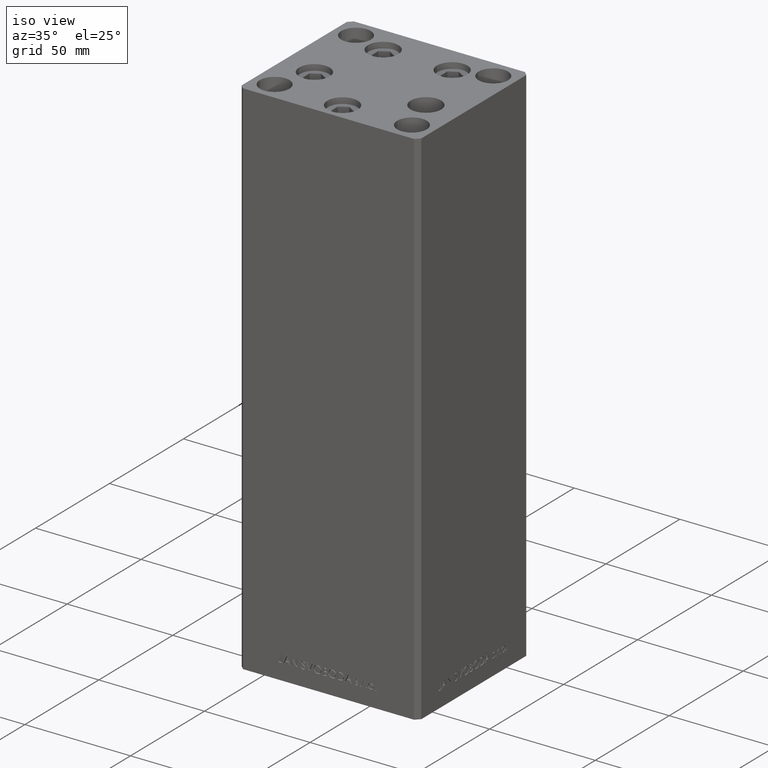
[diagram: clean part render]
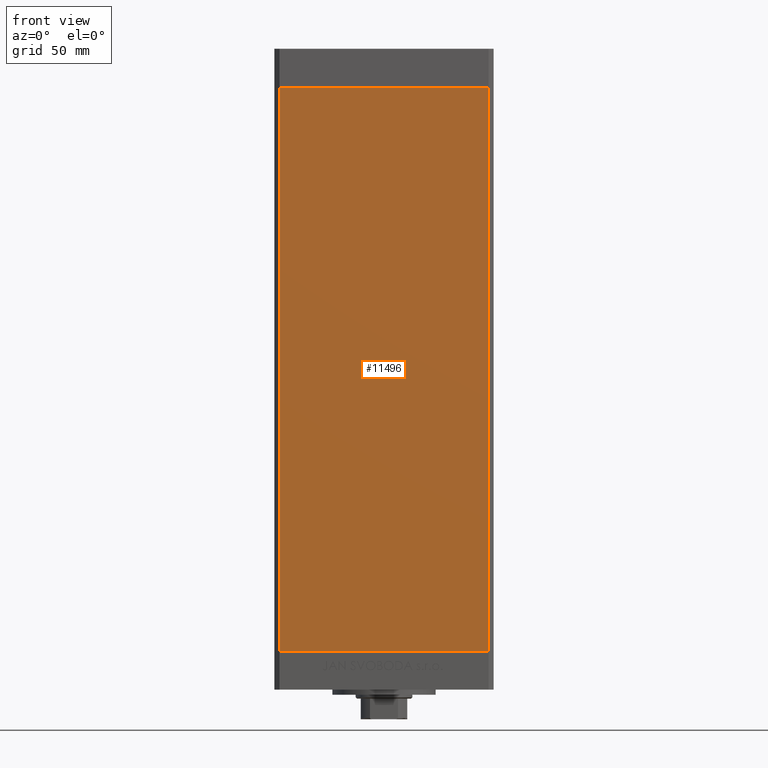
[diagram: tour spotlight — one face highlighted and labeled with its STEP entity id]
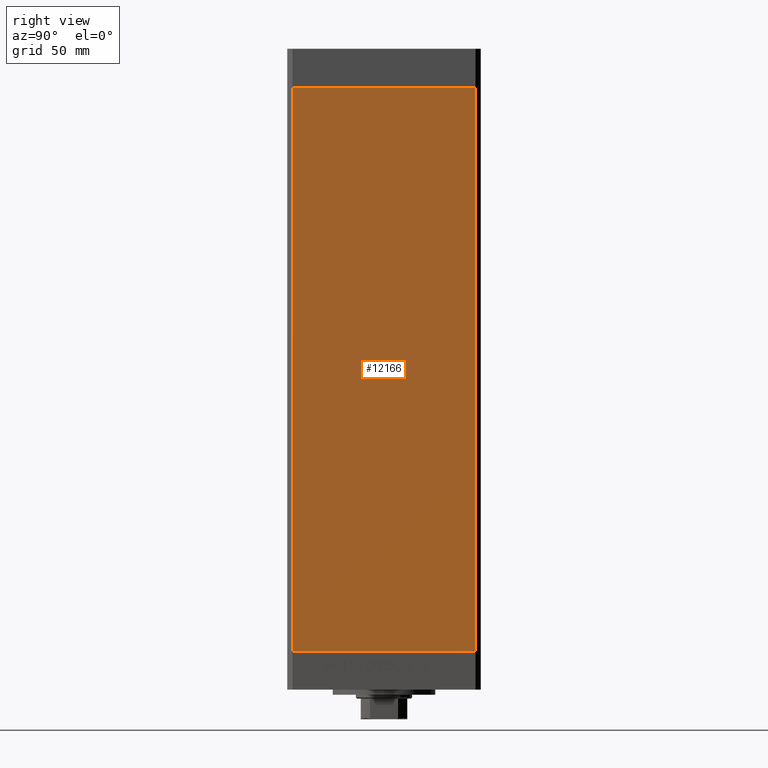
[diagram: tour spotlight — one face highlighted and labeled with its STEP entity id]
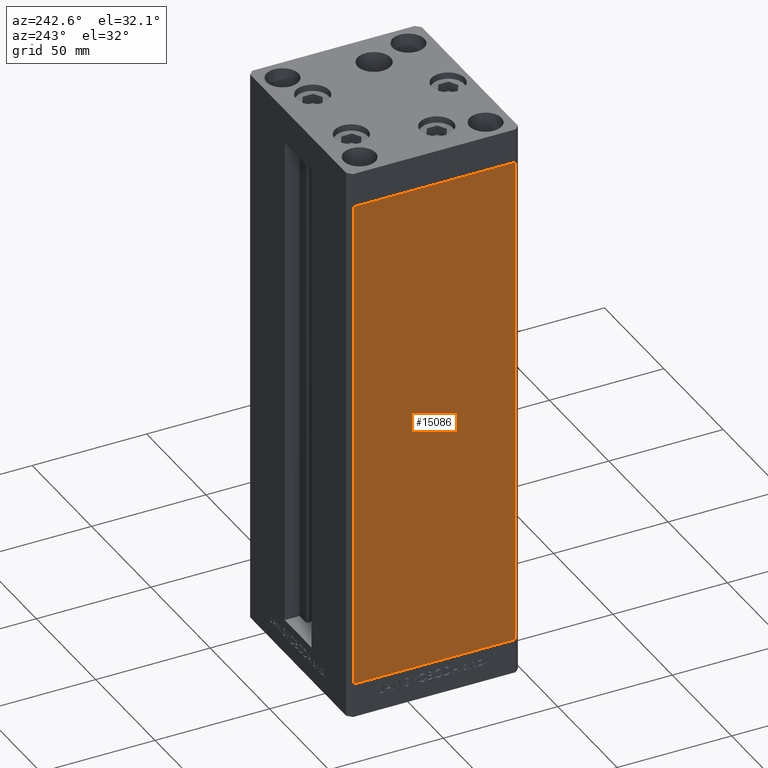
[diagram: tour spotlight — one face highlighted and labeled with its STEP entity id]
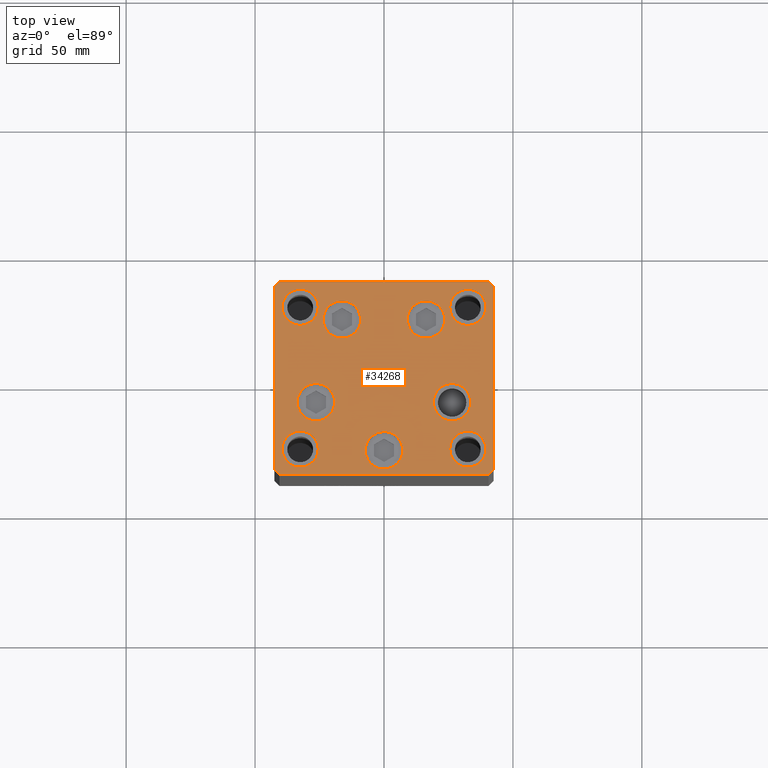
[diagram: tour spotlight — one face highlighted and labeled with its STEP entity id]
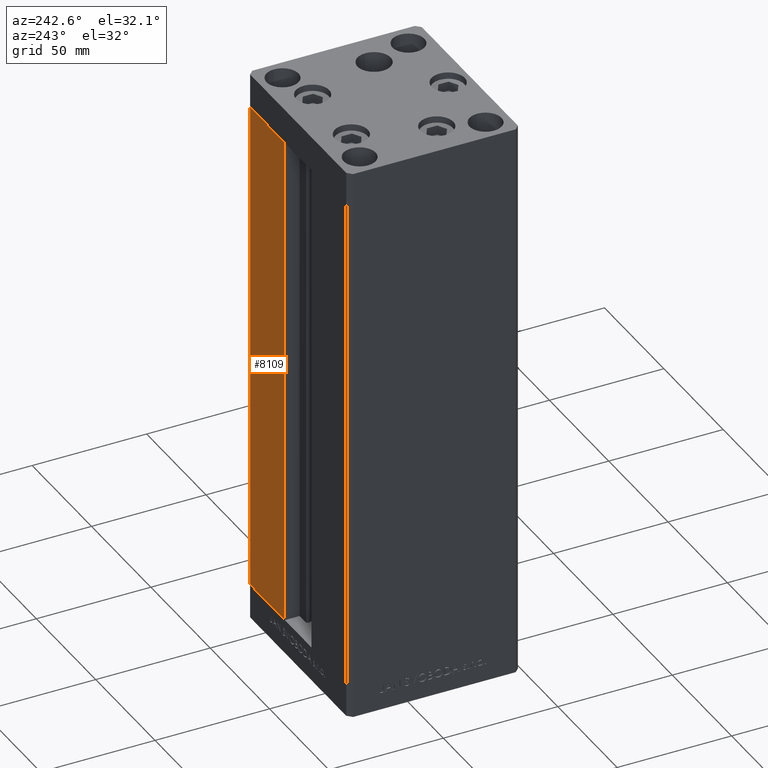
[diagram: tour spotlight — one face highlighted and labeled with its STEP entity id]
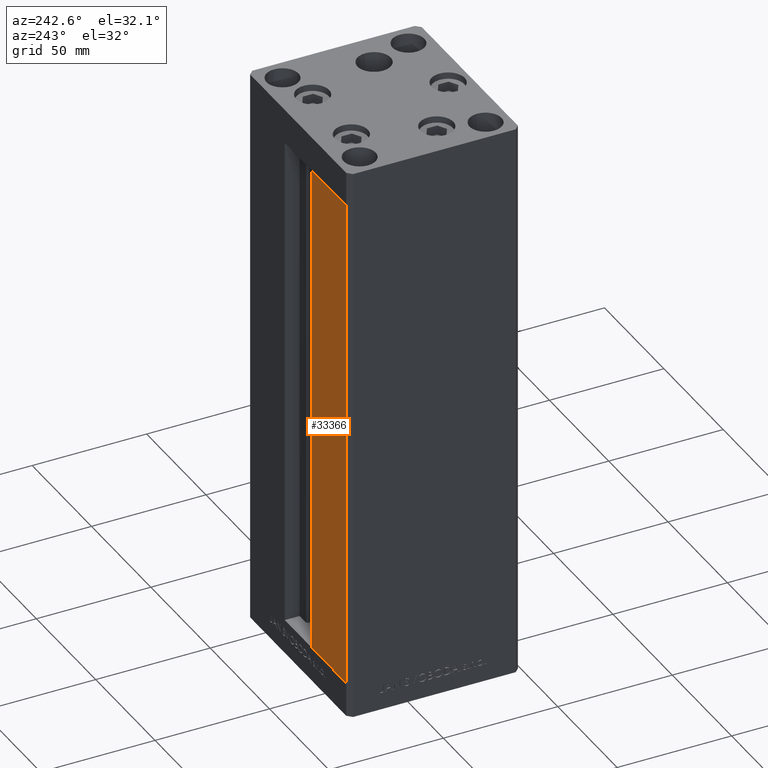
[diagram: tour spotlight — one face highlighted and labeled with its STEP entity id]
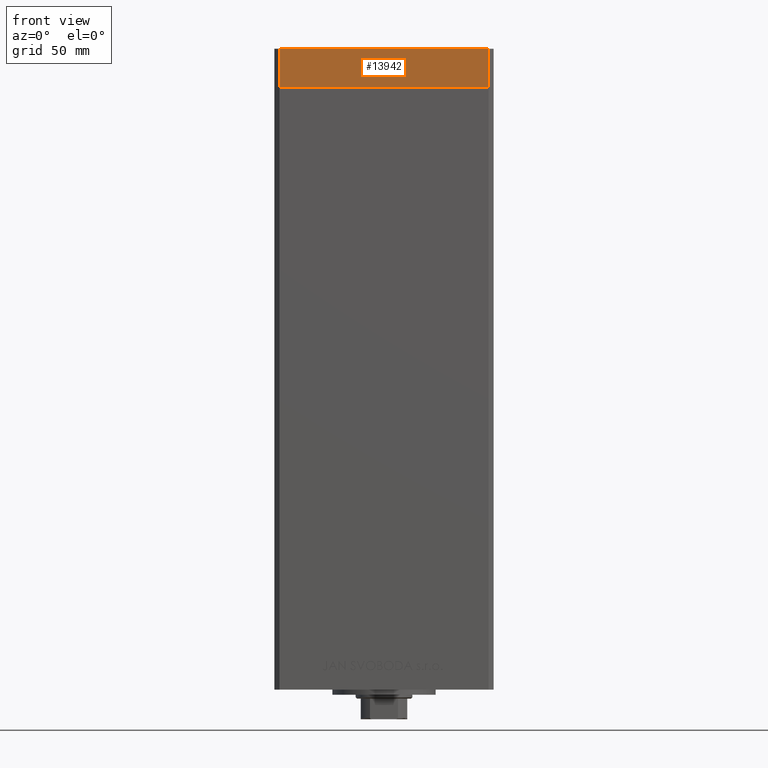
[diagram: tour spotlight — one face highlighted and labeled with its STEP entity id]
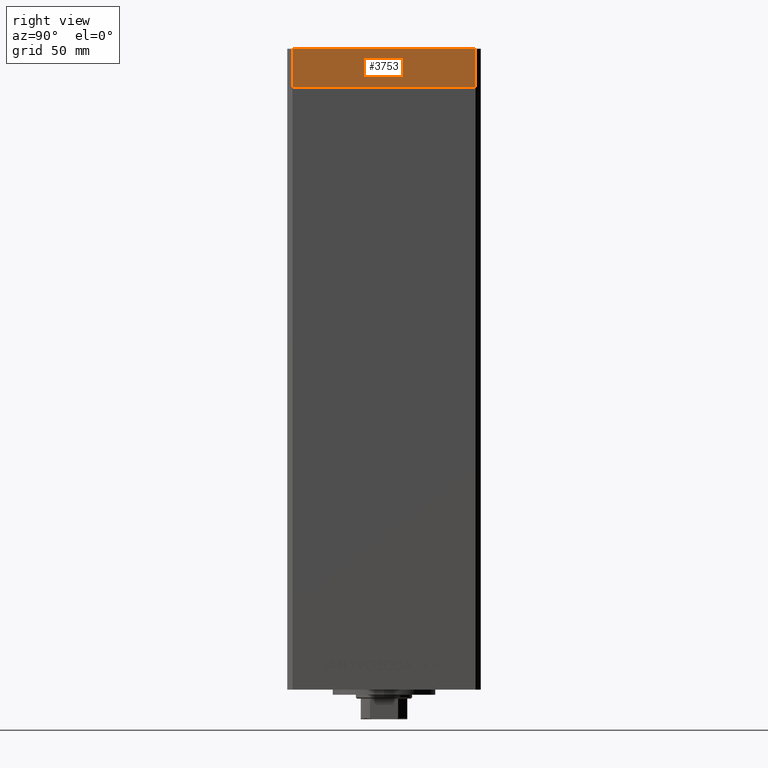
[diagram: tour spotlight — one face highlighted and labeled with its STEP entity id]
A machine part: a face-by-face anatomy tour. The part has 1163 B-rep faces; the first image is the clean iso view, then the 8 largest visible faces are spotlighted one at a time (largest first), each with its STEP entity span.

Face 1 — front view, entity #11496. In plain terms, the highlighted planar face has unit normal (0, 1, 0).
Definition (entity closure, byte-faithful):
#160 = ORIENTED_EDGE ( 'NONE', *, *, #41957, .T. ) ;
#2158 = CARTESIAN_POINT ( 'NONE',  ( -40.49999999999998579, -37.50000000000000711, 0.000000000000000000 ) ) ;
#2602 = VERTEX_POINT ( 'NONE', #17815 ) ;
#3008 = EDGE_CURVE ( 'NONE', #47636, #32334, #26289, .T. ) ;
#3666 = DIRECTION ( 'NONE',  ( 0.000000000000000000, -0.000000000000000000, 1.000000000000000000 ) ) ;
#8090 = LINE ( 'NONE', #42748, #14279 ) ;
#10599 = CARTESIAN_POINT ( 'NONE',  ( -40.49999999999998579, -37.50000000000000711, 218.5000000000000000 ) ) ;
#11496 = ADVANCED_FACE ( 'NONE', ( #33854 ), #48971, .F. ) ;
#11807 = DIRECTION ( 'NONE',  ( -0.000000000000000000, -0.000000000000000000, -1.000000000000000000 ) ) ;
#11818 = DIRECTION ( 'NONE',  ( 0.000000000000000000, 1.000000000000000000, 0.000000000000000000 ) ) ;
#12721 = ORIENTED_EDGE ( 'NONE', *, *, #22586, .F. ) ;
#14240 = CARTESIAN_POINT ( 'NONE',  ( 40.49999999999998579, -37.50000000000000711, 0.000000000000000000 ) ) ;
#14279 = VECTOR ( 'NONE', #11807, 1000.000000000000000 ) ;
#17237 = DIRECTION ( 'NONE',  ( 1.000000000000000000, 0.000000000000000000, 0.000000000000000000 ) ) ;
#17802 = VECTOR ( 'NONE', #17237, 1000.000000000000000 ) ;
#17815 = CARTESIAN_POINT ( 'NONE',  ( 40.49999999999998579, -37.50000000000000711, 218.5000000000000000 ) ) ;
#19824 = EDGE_CURVE ( 'NONE', #2602, #40639, #8090, .T. ) ;
#21378 = ORIENTED_EDGE ( 'NONE', *, *, #3008, .T. ) ;
#22586 = EDGE_CURVE ( 'NONE', #47636, #2602, #30577, .T. ) ;
#24837 = VECTOR ( 'NONE', #37952, 1000.000000000000000 ) ;
#26289 = LINE ( 'NONE', #34463, #24837 ) ;
#27461 = AXIS2_PLACEMENT_3D ( 'NONE', #37585, #11818, #3666 ) ;
#28393 = VECTOR ( 'NONE', #42470, 1000.000000000000000 ) ;
#29006 = EDGE_LOOP ( 'NONE', ( #160, #43739, #12721, #21378 ) ) ;
#30577 = LINE ( 'NONE', #31053, #28393 ) ;
#31053 = CARTESIAN_POINT ( 'NONE',  ( -40.49999999999998579, -37.50000000000000711, 218.5000000000000000 ) ) ;
#32334 = VERTEX_POINT ( 'NONE', #35916 ) ;
#33854 = FACE_OUTER_BOUND ( 'NONE', #29006, .T. ) ;
#34463 = CARTESIAN_POINT ( 'NONE',  ( -40.49999999999998579, -37.50000000000000711, 218.5000000000000000 ) ) ;
#35916 = CARTESIAN_POINT ( 'NONE',  ( -40.49999999999998579, -37.50000000000000711, 0.000000000000000000 ) ) ;
#37585 = CARTESIAN_POINT ( 'NONE',  ( -40.49999999999998579, -37.50000000000000711, 218.5000000000000000 ) ) ;
#37952 = DIRECTION ( 'NONE',  ( -0.000000000000000000, -0.000000000000000000, -1.000000000000000000 ) ) ;
#39779 = LINE ( 'NONE', #2158, #17802 ) ;
#40639 = VERTEX_POINT ( 'NONE', #14240 ) ;
#41957 = EDGE_CURVE ( 'NONE', #32334, #40639, #39779, .T. ) ;
#42470 = DIRECTION ( 'NONE',  ( 1.000000000000000000, 0.000000000000000000, 0.000000000000000000 ) ) ;
#42748 = CARTESIAN_POINT ( 'NONE',  ( 40.49999999999998579, -37.50000000000000711, 218.5000000000000000 ) ) ;
#43739 = ORIENTED_EDGE ( 'NONE', *, *, #19824, .F. ) ;
#47636 = VERTEX_POINT ( 'NONE', #10599 ) ;
#48971 = PLANE ( 'NONE',  #27461 ) ;

Face 2 — right view, entity #12166. In plain terms, the highlighted planar face has unit normal (1, -0, 0).
Definition (entity closure, byte-faithful):
#141 = CARTESIAN_POINT ( 'NONE',  ( 42.50000000000000711, 35.50000000000001421, 0.000000000000000000 ) ) ;
#298 = EDGE_CURVE ( 'NONE', #39199, #4986, #6304, .T. ) ;
#725 = VERTEX_POINT ( 'NONE', #33216 ) ;
#961 = ORIENTED_EDGE ( 'NONE', *, *, #30749, .T. ) ;
#2118 = CARTESIAN_POINT ( 'NONE',  ( 42.49999999999998579, -35.50000000000000711, 0.000000000000000000 ) ) ;
#3964 = CARTESIAN_POINT ( 'NONE',  ( 42.50000000000000711, 35.50000000000001421, 218.5000000000000000 ) ) ;
#4986 = VERTEX_POINT ( 'NONE', #15973 ) ;
#6304 = LINE ( 'NONE', #47415, #42966 ) ;
#9586 = EDGE_LOOP ( 'NONE', ( #12738, #21701, #961, #47147 ) ) ;
#12120 = PLANE ( 'NONE',  #17910 ) ;
#12166 = ADVANCED_FACE ( 'NONE', ( #27219 ), #12120, .T. ) ;
#12406 = CARTESIAN_POINT ( 'NONE',  ( 42.50000000000000711, 35.50000000000001421, 218.5000000000000000 ) ) ;
#12738 = ORIENTED_EDGE ( 'NONE', *, *, #18702, .F. ) ;
#14339 = CARTESIAN_POINT ( 'NONE',  ( 42.49999999999998579, -35.50000000000000711, 218.5000000000000000 ) ) ;
#15973 = CARTESIAN_POINT ( 'NONE',  ( 42.50000000000000711, 35.50000000000001421, 0.000000000000000000 ) ) ;
#17910 = AXIS2_PLACEMENT_3D ( 'NONE', #30699, #19064, #34899 ) ;
#18702 = EDGE_CURVE ( 'NONE', #4986, #38577, #34029, .T. ) ;
#19029 = VECTOR ( 'NONE', #19049, 1000.000000000000000 ) ;
#19049 = DIRECTION ( 'NONE',  ( -2.931927001650941360E-16, -1.000000000000000000, 0.000000000000000000 ) ) ;
#19064 = DIRECTION ( 'NONE',  ( 1.000000000000000000, -2.931927001650941360E-16, 0.000000000000000000 ) ) ;
#19287 = LINE ( 'NONE', #3964, #19029 ) ;
#21265 = VECTOR ( 'NONE', #30316, 1000.000000000000000 ) ;
#21701 = ORIENTED_EDGE ( 'NONE', *, *, #298, .F. ) ;
#27219 = FACE_OUTER_BOUND ( 'NONE', #9586, .T. ) ;
#30316 = DIRECTION ( 'NONE',  ( -2.931927001650941360E-16, -1.000000000000000000, 0.000000000000000000 ) ) ;
#30699 = CARTESIAN_POINT ( 'NONE',  ( 42.50000000000000711, 35.50000000000001421, 218.5000000000000000 ) ) ;
#30749 = EDGE_CURVE ( 'NONE', #39199, #725, #19287, .T. ) ;
#33216 = CARTESIAN_POINT ( 'NONE',  ( 42.49999999999998579, -35.50000000000000711, 218.5000000000000000 ) ) ;
#34029 = LINE ( 'NONE', #141, #21265 ) ;
#34899 = DIRECTION ( 'NONE',  ( 2.931927001650941360E-16, 1.000000000000000000, 0.000000000000000000 ) ) ;
#37141 = LINE ( 'NONE', #14339, #48504 ) ;
#37203 = EDGE_CURVE ( 'NONE', #725, #38577, #37141, .T. ) ;
#37383 = DIRECTION ( 'NONE',  ( -0.000000000000000000, -0.000000000000000000, -1.000000000000000000 ) ) ;
#38577 = VERTEX_POINT ( 'NONE', #2118 ) ;
#39199 = VERTEX_POINT ( 'NONE', #12406 ) ;
#42966 = VECTOR ( 'NONE', #47657, 1000.000000000000000 ) ;
#47147 = ORIENTED_EDGE ( 'NONE', *, *, #37203, .T. ) ;
#47415 = CARTESIAN_POINT ( 'NONE',  ( 42.50000000000000711, 35.50000000000001421, 218.5000000000000000 ) ) ;
#47657 = DIRECTION ( 'NONE',  ( -0.000000000000000000, -0.000000000000000000, -1.000000000000000000 ) ) ;
#48504 = VECTOR ( 'NONE', #37383, 1000.000000000000000 ) ;

Face 3 — auxiliary view, entity #15086. In plain terms, the highlighted planar face has unit normal (1, 0, 0).
Definition (entity closure, byte-faithful):
#1800 = VERTEX_POINT ( 'NONE', #24994 ) ;
#4242 = CARTESIAN_POINT ( 'NONE',  ( -42.50000000000000711, 35.50000000000001421, 218.5000000000000000 ) ) ;
#4543 = AXIS2_PLACEMENT_3D ( 'NONE', #36073, #35824, #44012 ) ;
#5864 = DIRECTION ( 'NONE',  ( 2.931927001650941360E-16, -1.000000000000000000, 0.000000000000000000 ) ) ;
#6888 = CARTESIAN_POINT ( 'NONE',  ( -42.49999999999998579, -35.50000000000000711, 218.5000000000000000 ) ) ;
#6902 = ORIENTED_EDGE ( 'NONE', *, *, #48672, .F. ) ;
#7399 = ORIENTED_EDGE ( 'NONE', *, *, #41333, .T. ) ;
#10094 = EDGE_CURVE ( 'NONE', #1800, #28077, #26434, .T. ) ;
#11834 = DIRECTION ( 'NONE',  ( -0.000000000000000000, -0.000000000000000000, -1.000000000000000000 ) ) ;
#12417 = LINE ( 'NONE', #28492, #39693 ) ;
#12562 = LINE ( 'NONE', #4242, #21034 ) ;
#13388 = LINE ( 'NONE', #43623, #25679 ) ;
#15086 = ADVANCED_FACE ( 'NONE', ( #40040 ), #24194, .F. ) ;
#17970 = ORIENTED_EDGE ( 'NONE', *, *, #10094, .F. ) ;
#20080 = DIRECTION ( 'NONE',  ( -0.000000000000000000, -0.000000000000000000, -1.000000000000000000 ) ) ;
#21034 = VECTOR ( 'NONE', #5864, 1000.000000000000000 ) ;
#24194 = PLANE ( 'NONE',  #4543 ) ;
#24994 = CARTESIAN_POINT ( 'NONE',  ( -42.49999999999998579, -35.50000000000000711, 218.5000000000000000 ) ) ;
#25265 = DIRECTION ( 'NONE',  ( 2.931927001650941360E-16, -1.000000000000000000, 0.000000000000000000 ) ) ;
#25679 = VECTOR ( 'NONE', #25265, 1000.000000000000000 ) ;
#26434 = LINE ( 'NONE', #6888, #33762 ) ;
#28077 = VERTEX_POINT ( 'NONE', #36954 ) ;
#28492 = CARTESIAN_POINT ( 'NONE',  ( -42.50000000000000711, 35.50000000000001421, 218.5000000000000000 ) ) ;
#31352 = CARTESIAN_POINT ( 'NONE',  ( -42.50000000000000711, 35.50000000000001421, 0.000000000000000000 ) ) ;
#33387 = VERTEX_POINT ( 'NONE', #31352 ) ;
#33630 = EDGE_CURVE ( 'NONE', #39085, #33387, #12417, .T. ) ;
#33762 = VECTOR ( 'NONE', #11834, 1000.000000000000000 ) ;
#35523 = ORIENTED_EDGE ( 'NONE', *, *, #33630, .T. ) ;
#35824 = DIRECTION ( 'NONE',  ( 1.000000000000000000, 2.931927001650941360E-16, -0.000000000000000000 ) ) ;
#36073 = CARTESIAN_POINT ( 'NONE',  ( -42.50000000000000711, 35.50000000000001421, 218.5000000000000000 ) ) ;
#36522 = CARTESIAN_POINT ( 'NONE',  ( -42.50000000000000711, 35.50000000000001421, 218.5000000000000000 ) ) ;
#36954 = CARTESIAN_POINT ( 'NONE',  ( -42.49999999999998579, -35.50000000000000711, 0.000000000000000000 ) ) ;
#39085 = VERTEX_POINT ( 'NONE', #36522 ) ;
#39693 = VECTOR ( 'NONE', #20080, 1000.000000000000000 ) ;
#40040 = FACE_OUTER_BOUND ( 'NONE', #41187, .T. ) ;
#41187 = EDGE_LOOP ( 'NONE', ( #7399, #17970, #6902, #35523 ) ) ;
#41333 = EDGE_CURVE ( 'NONE', #33387, #28077, #13388, .T. ) ;
#43623 = CARTESIAN_POINT ( 'NONE',  ( -42.50000000000000711, 35.50000000000001421, 0.000000000000000000 ) ) ;
#44012 = DIRECTION ( 'NONE',  ( -2.931927001650941360E-16, 1.000000000000000000, 0.000000000000000000 ) ) ;
#48672 = EDGE_CURVE ( 'NONE', #39085, #1800, #12562, .T. ) ;

Face 4 — top view, entity #34268. In plain terms, the highlighted planar face has unit normal (0, 0, 1).
Definition (entity closure, byte-faithful):
#205 = CARTESIAN_POINT ( 'NONE',  ( 32.50000000000000000, 27.49999999999999645, 0.000000000000000000 ) ) ;
#416 = EDGE_CURVE ( 'NONE', #34835, #42306, #44512, .T. ) ;
#457 = CARTESIAN_POINT ( 'NONE',  ( -32.50000000000000000, -27.49999999999999645, 0.000000000000000000 ) ) ;
#562 = AXIS2_PLACEMENT_3D ( 'NONE', #13264, #28384, #12790 ) ;
#807 = DIRECTION ( 'NONE',  ( 0.000000000000000000, -0.000000000000000000, -1.000000000000000000 ) ) ;
#1048 = CARTESIAN_POINT ( 'NONE',  ( -42.50000000000000000, -35.50000000000000711, 0.000000000000000000 ) ) ;
#1182 = AXIS2_PLACEMENT_3D ( 'NONE', #44288, #10111, #40331 ) ;
#1770 = CARTESIAN_POINT ( 'NONE',  ( 42.50000000000000711, -35.50000000000000000, 0.000000000000000000 ) ) ;
#1889 = DIRECTION ( 'NONE',  ( 0.000000000000000000, 0.000000000000000000, 1.000000000000000000 ) ) ;
#1973 = EDGE_CURVE ( 'NONE', #13933, #17259, #10565, .T. ) ;
#2150 = FACE_BOUND ( 'NONE', #12553, .T. ) ;
#2233 = VERTEX_POINT ( 'NONE', #17748 ) ;
#2363 = CARTESIAN_POINT ( 'NONE',  ( -42.50000000000000000, -35.50000000000000711, 0.000000000000000000 ) ) ;
#2371 = CARTESIAN_POINT ( 'NONE',  ( -40.49999999999999289, -37.50000000000002132, 0.000000000000000000 ) ) ;
#2797 = AXIS2_PLACEMENT_3D ( 'NONE', #36557, #3381, #18460 ) ;
#2874 = CARTESIAN_POINT ( 'NONE',  ( -42.50000000000000711, 35.49999999999997158, 0.000000000000000000 ) ) ;
#3130 = CARTESIAN_POINT ( 'NONE',  ( 0.000000000000000000, 0.000000000000000000, 0.000000000000000000 ) ) ;
#3145 = AXIS2_PLACEMENT_3D ( 'NONE', #40583, #25954, #14319 ) ;
#3381 = DIRECTION ( 'NONE',  ( 0.000000000000000000, 0.000000000000000000, 1.000000000000000000 ) ) ;
#3501 = CARTESIAN_POINT ( 'NONE',  ( 25.50000000000000355, 27.49999999999999645, 0.000000000000000000 ) ) ;
#3640 = DIRECTION ( 'NONE',  ( 0.000000000000000000, -0.000000000000000000, -1.000000000000000000 ) ) ;
#3850 = EDGE_CURVE ( 'NONE', #28879, #9947, #10609, .T. ) ;
#4124 = DIRECTION ( 'NONE',  ( 0.000000000000000000, 0.000000000000000000, 1.000000000000000000 ) ) ;
#4425 = CARTESIAN_POINT ( 'NONE',  ( 9.072913342905424727, 22.75000000000000000, 0.000000000000000000 ) ) ;
#4519 = CARTESIAN_POINT ( 'NONE',  ( -39.50000000000000000, -27.49999999999999645, 0.000000000000000000 ) ) ;
#4730 = VERTEX_POINT ( 'NONE', #25937 ) ;
#5124 = CIRCLE ( 'NONE', #1182, 7.250000000000000000 ) ;
#5449 = VERTEX_POINT ( 'NONE', #28997 ) ;
#5581 = CARTESIAN_POINT ( 'NONE',  ( 42.49999999999992895, 35.50000000000000000, 0.000000000000000000 ) ) ;
#5610 = FACE_BOUND ( 'NONE', #26766, .T. ) ;
#5719 = LINE ( 'NONE', #17588, #23847 ) ;
#6264 = AXIS2_PLACEMENT_3D ( 'NONE', #18811, #30201, #26977 ) ;
#6592 = LINE ( 'NONE', #15740, #28268 ) ;
#7612 = VECTOR ( 'NONE', #44119, 1000.000000000000114 ) ;
#7839 = EDGE_CURVE ( 'NONE', #17772, #30258, #28261, .T. ) ;
#8146 = AXIS2_PLACEMENT_3D ( 'NONE', #34262, #8741, #34750 ) ;
#8248 = VERTEX_POINT ( 'NONE', #4425 ) ;
#8675 = ORIENTED_EDGE ( 'NONE', *, *, #16298, .T. ) ;
#8676 = VERTEX_POINT ( 'NONE', #1048 ) ;
#8714 = EDGE_CURVE ( 'NONE', #2233, #17772, #35669, .T. ) ;
#8741 = DIRECTION ( 'NONE',  ( 0.000000000000000000, 0.000000000000000000, 1.000000000000000000 ) ) ;
#8814 = DIRECTION ( 'NONE',  ( 1.000000000000000000, 1.713307136767217096E-16, 0.000000000000000000 ) ) ;
#9175 = DIRECTION ( 'NONE',  ( 0.000000000000000000, -0.000000000000000000, -1.000000000000000000 ) ) ;
#9298 = CARTESIAN_POINT ( 'NONE',  ( -32.50000000000000000, 27.50000000000000355, 0.000000000000000000 ) ) ;
#9374 = CIRCLE ( 'NONE', #6264, 6.999999999999999112 ) ;
#9746 = AXIS2_PLACEMENT_3D ( 'NONE', #205, #11314, #45499 ) ;
#9823 = AXIS2_PLACEMENT_3D ( 'NONE', #46343, #807, #27505 ) ;
#9884 = ORIENTED_EDGE ( 'NONE', *, *, #17871, .T. ) ;
#9897 = CARTESIAN_POINT ( 'NONE',  ( -40.50000000000000711, 37.49999999999997868, 0.000000000000000000 ) ) ;
#9947 = VERTEX_POINT ( 'NONE', #14055 ) ;
#10054 = FACE_BOUND ( 'NONE', #29901, .T. ) ;
#10074 = DIRECTION ( 'NONE',  ( 1.000000000000000000, 0.000000000000000000, 0.000000000000000000 ) ) ;
#10111 = DIRECTION ( 'NONE',  ( 0.000000000000000000, -0.000000000000000000, -1.000000000000000000 ) ) ;
#10245 = VERTEX_POINT ( 'NONE', #47945 ) ;
#10307 = ORIENTED_EDGE ( 'NONE', *, *, #37688, .T. ) ;
#10387 = CARTESIAN_POINT ( 'NONE',  ( -16.32291334290543006, 22.74999999999999645, 0.000000000000000000 ) ) ;
#10565 = CIRCLE ( 'NONE', #33509, 7.249999999999999112 ) ;
#10609 = CIRCLE ( 'NONE', #15388, 7.249999999999999112 ) ;
#10776 = ORIENTED_EDGE ( 'NONE', *, *, #30636, .F. ) ;
#10977 = ORIENTED_EDGE ( 'NONE', *, *, #3850, .T. ) ;
#11245 = AXIS2_PLACEMENT_3D ( 'NONE', #3130, #17228, #28867 ) ;
#11314 = DIRECTION ( 'NONE',  ( 0.000000000000000000, 0.000000000000000000, 1.000000000000000000 ) ) ;
#11797 = CIRCLE ( 'NONE', #36316, 7.249999999999999112 ) ;
#12024 = DIRECTION ( 'NONE',  ( 1.000000000000000000, 0.000000000000000000, 0.000000000000000000 ) ) ;
#12553 = EDGE_LOOP ( 'NONE', ( #46572, #30174 ) ) ;
#12790 = DIRECTION ( 'NONE',  ( 1.000000000000000000, 0.000000000000000000, 0.000000000000000000 ) ) ;
#12887 = EDGE_CURVE ( 'NONE', #5449, #23276, #43232, .T. ) ;
#12893 = DIRECTION ( 'NONE',  ( 0.7071067811865474617, 0.7071067811865474617, 0.000000000000000000 ) ) ;
#13246 = DIRECTION ( 'NONE',  ( 1.000000000000000000, 0.000000000000000000, 0.000000000000000000 ) ) ;
#13264 = CARTESIAN_POINT ( 'NONE',  ( -26.39865316429776954, -9.333333333333337478, 0.000000000000000000 ) ) ;
#13281 = EDGE_CURVE ( 'NONE', #4730, #48448, #31384, .T. ) ;
#13933 = VERTEX_POINT ( 'NONE', #36371 ) ;
#14055 = CARTESIAN_POINT ( 'NONE',  ( 19.14865316429777309, -9.333333333333330373, 0.000000000000000000 ) ) ;
#14319 = DIRECTION ( 'NONE',  ( 1.000000000000000000, 0.000000000000000000, 0.000000000000000000 ) ) ;
#14335 = EDGE_CURVE ( 'NONE', #25764, #8676, #6592, .T. ) ;
#14960 = CARTESIAN_POINT ( 'NONE',  ( 40.49999999999991473, 37.50000000000000711, 0.000000000000000000 ) ) ;
#15090 = DIRECTION ( 'NONE',  ( 0.000000000000000000, 0.000000000000000000, 1.000000000000000000 ) ) ;
#15249 = EDGE_CURVE ( 'NONE', #8248, #22225, #36147, .T. ) ;
#15279 = ORIENTED_EDGE ( 'NONE', *, *, #45061, .T. ) ;
#15388 = AXIS2_PLACEMENT_3D ( 'NONE', #17220, #36538, #13246 ) ;
#15740 = CARTESIAN_POINT ( 'NONE',  ( -42.50000000000000711, 35.49999999999997158, 0.000000000000000000 ) ) ;
#16298 = EDGE_CURVE ( 'NONE', #30258, #17230, #47447, .T. ) ;
#16359 = CARTESIAN_POINT ( 'NONE',  ( -40.49999999999999289, -37.50000000000002132, 0.000000000000000000 ) ) ;
#16592 = AXIS2_PLACEMENT_3D ( 'NONE', #27627, #32060, #20914 ) ;
#16851 = DIRECTION ( 'NONE',  ( -1.172770800660376741E-15, 1.000000000000000000, 0.000000000000000000 ) ) ;
#17016 = ORIENTED_EDGE ( 'NONE', *, *, #24113, .T. ) ;
#17075 = ORIENTED_EDGE ( 'NONE', *, *, #32409, .T. ) ;
#17078 = CARTESIAN_POINT ( 'NONE',  ( -23.57291334290543006, 22.74999999999999645, 0.000000000000000000 ) ) ;
#17123 = VERTEX_POINT ( 'NONE', #16359 ) ;
#17178 = ORIENTED_EDGE ( 'NONE', *, *, #48875, .F. ) ;
#17220 = CARTESIAN_POINT ( 'NONE',  ( 26.39865316429776954, -9.333333333333330373, 0.000000000000000000 ) ) ;
#17228 = DIRECTION ( 'NONE',  ( -0.000000000000000000, 0.000000000000000000, 1.000000000000000000 ) ) ;
#17230 = VERTEX_POINT ( 'NONE', #9897 ) ;
#17259 = VERTEX_POINT ( 'NONE', #17078 ) ;
#17345 = EDGE_LOOP ( 'NONE', ( #17016, #10977 ) ) ;
#17384 = CIRCLE ( 'NONE', #16592, 7.249999999999999112 ) ;
#17588 = CARTESIAN_POINT ( 'NONE',  ( 40.50000000000000000, -37.50000000000000711, 0.000000000000000000 ) ) ;
#17659 = CIRCLE ( 'NONE', #29506, 6.999999999999999112 ) ;
#17748 = CARTESIAN_POINT ( 'NONE',  ( 42.50000000000000711, -35.50000000000000000, 0.000000000000000000 ) ) ;
#17772 = VERTEX_POINT ( 'NONE', #5581 ) ;
#17871 = EDGE_CURVE ( 'NONE', #8676, #17123, #47912, .T. ) ;
#18460 = DIRECTION ( 'NONE',  ( 1.000000000000000000, 0.000000000000000000, 0.000000000000000000 ) ) ;
#18811 = CARTESIAN_POINT ( 'NONE',  ( -32.50000000000000000, 27.50000000000000355, 0.000000000000000000 ) ) ;
#18874 = CARTESIAN_POINT ( 'NONE',  ( 33.64865316429776954, -9.333333333333328596, 0.000000000000000000 ) ) ;
#19257 = EDGE_LOOP ( 'NONE', ( #25107, #21613 ) ) ;
#19785 = CARTESIAN_POINT ( 'NONE',  ( -26.39865316429776954, -9.333333333333337478, 0.000000000000000000 ) ) ;
#20211 = DIRECTION ( 'NONE',  ( -1.000000000000000000, -3.426614273534436165E-16, 0.000000000000000000 ) ) ;
#20272 = AXIS2_PLACEMENT_3D ( 'NONE', #30108, #4124, #12024 ) ;
#20455 = CARTESIAN_POINT ( 'NONE',  ( 40.49999999999991473, 37.50000000000000711, 0.000000000000000000 ) ) ;
#20695 = VERTEX_POINT ( 'NONE', #31346 ) ;
#20914 = DIRECTION ( 'NONE',  ( 1.000000000000000000, 0.000000000000000000, 0.000000000000000000 ) ) ;
#21054 = VERTEX_POINT ( 'NONE', #26053 ) ;
#21161 = DIRECTION ( 'NONE',  ( 1.000000000000000000, 0.000000000000000000, 0.000000000000000000 ) ) ;
#21342 = DIRECTION ( 'NONE',  ( 1.000000000000000000, 0.000000000000000000, 0.000000000000000000 ) ) ;
#21613 = ORIENTED_EDGE ( 'NONE', *, *, #13281, .T. ) ;
#21676 = FACE_BOUND ( 'NONE', #19257, .T. ) ;
#21863 = CIRCLE ( 'NONE', #20272, 6.999999999999999112 ) ;
#22110 = EDGE_CURVE ( 'NONE', #20695, #10245, #9374, .T. ) ;
#22216 = DIRECTION ( 'NONE',  ( 1.000000000000000000, 0.000000000000000000, 0.000000000000000000 ) ) ;
#22225 = VERTEX_POINT ( 'NONE', #31652 ) ;
#22384 = EDGE_CURVE ( 'NONE', #23276, #5449, #11797, .T. ) ;
#22557 = ORIENTED_EDGE ( 'NONE', *, *, #22110, .F. ) ;
#22607 = CARTESIAN_POINT ( 'NONE',  ( 25.50000000000000355, -27.49999999999999645, 0.000000000000000000 ) ) ;
#22675 = DIRECTION ( 'NONE',  ( 9.773090005503140331E-17, -1.000000000000000000, 0.000000000000000000 ) ) ;
#23145 = VERTEX_POINT ( 'NONE', #37404 ) ;
#23276 = VERTEX_POINT ( 'NONE', #35387 ) ;
#23289 = EDGE_LOOP ( 'NONE', ( #42190, #36989 ) ) ;
#23362 = CIRCLE ( 'NONE', #2797, 6.999999999999999112 ) ;
#23401 = ORIENTED_EDGE ( 'NONE', *, *, #14335, .T. ) ;
#23739 = DIRECTION ( 'NONE',  ( 0.000000000000000000, -0.000000000000000000, -1.000000000000000000 ) ) ;
#23817 = VERTEX_POINT ( 'NONE', #36673 ) ;
#23833 = VERTEX_POINT ( 'NONE', #3501 ) ;
#23847 = VECTOR ( 'NONE', #12893, 1000.000000000000114 ) ;
#24113 = EDGE_CURVE ( 'NONE', #9947, #28879, #24457, .T. ) ;
#24457 = CIRCLE ( 'NONE', #3145, 7.249999999999999112 ) ;
#24657 = FACE_BOUND ( 'NONE', #17345, .T. ) ;
#24739 = EDGE_CURVE ( 'NONE', #17259, #13933, #17384, .T. ) ;
#25107 = ORIENTED_EDGE ( 'NONE', *, *, #44157, .T. ) ;
#25412 = CARTESIAN_POINT ( 'NONE',  ( 16.32291334290542295, 22.75000000000000000, 0.000000000000000000 ) ) ;
#25481 = DIRECTION ( 'NONE',  ( 1.000000000000000000, 0.000000000000000000, 0.000000000000000000 ) ) ;
#25542 = CARTESIAN_POINT ( 'NONE',  ( -32.50000000000000000, -27.49999999999999645, 0.000000000000000000 ) ) ;
#25764 = VERTEX_POINT ( 'NONE', #2874 ) ;
#25937 = CARTESIAN_POINT ( 'NONE',  ( 7.250000000000003553, -28.00000000000000000, 0.000000000000000000 ) ) ;
#25954 = DIRECTION ( 'NONE',  ( 0.000000000000000000, -0.000000000000000000, -1.000000000000000000 ) ) ;
#26053 = CARTESIAN_POINT ( 'NONE',  ( 39.50000000000000000, 27.49999999999999645, 0.000000000000000000 ) ) ;
#26420 = DIRECTION ( 'NONE',  ( 0.000000000000000000, 0.000000000000000000, 1.000000000000000000 ) ) ;
#26766 = EDGE_LOOP ( 'NONE', ( #32842, #42946 ) ) ;
#26977 = DIRECTION ( 'NONE',  ( 1.000000000000000000, 0.000000000000000000, 0.000000000000000000 ) ) ;
#27505 = DIRECTION ( 'NONE',  ( 1.000000000000000000, 0.000000000000000000, 0.000000000000000000 ) ) ;
#27627 = CARTESIAN_POINT ( 'NONE',  ( -16.32291334290543006, 22.74999999999999645, 0.000000000000000000 ) ) ;
#27784 = CIRCLE ( 'NONE', #47590, 6.999999999999999112 ) ;
#28261 = LINE ( 'NONE', #28756, #7612 ) ;
#28268 = VECTOR ( 'NONE', #22675, 1000.000000000000000 ) ;
#28384 = DIRECTION ( 'NONE',  ( 0.000000000000000000, -0.000000000000000000, -1.000000000000000000 ) ) ;
#28692 = CARTESIAN_POINT ( 'NONE',  ( -40.50000000000000711, 37.49999999999997868, 0.000000000000000000 ) ) ;
#28725 = DIRECTION ( 'NONE',  ( 1.000000000000000000, 0.000000000000000000, 0.000000000000000000 ) ) ;
#28756 = CARTESIAN_POINT ( 'NONE',  ( 42.49999999999992895, 35.50000000000000000, 0.000000000000000000 ) ) ;
#28867 = DIRECTION ( 'NONE',  ( 1.000000000000000000, 0.000000000000000000, 0.000000000000000000 ) ) ;
#28879 = VERTEX_POINT ( 'NONE', #18874 ) ;
#28997 = CARTESIAN_POINT ( 'NONE',  ( -19.14865316429777309, -9.333333333333335702, 0.000000000000000000 ) ) ;
#29506 = AXIS2_PLACEMENT_3D ( 'NONE', #9298, #1889, #21161 ) ;
#29698 = DIRECTION ( 'NONE',  ( 0.000000000000000000, -0.000000000000000000, -1.000000000000000000 ) ) ;
#29901 = EDGE_LOOP ( 'NONE', ( #10776, #43908 ) ) ;
#30108 = CARTESIAN_POINT ( 'NONE',  ( 32.50000000000000000, -27.49999999999999645, 0.000000000000000000 ) ) ;
#30174 = ORIENTED_EDGE ( 'NONE', *, *, #42008, .F. ) ;
#30201 = DIRECTION ( 'NONE',  ( 0.000000000000000000, 0.000000000000000000, 1.000000000000000000 ) ) ;
#30258 = VERTEX_POINT ( 'NONE', #14960 ) ;
#30636 = EDGE_CURVE ( 'NONE', #23145, #40337, #34861, .T. ) ;
#31346 = CARTESIAN_POINT ( 'NONE',  ( -39.50000000000000000, 27.50000000000000355, 0.000000000000000000 ) ) ;
#31384 = CIRCLE ( 'NONE', #38514, 7.250000000000000000 ) ;
#31496 = CARTESIAN_POINT ( 'NONE',  ( -7.249999999999997335, -28.00000000000000000, 0.000000000000000000 ) ) ;
#31652 = CARTESIAN_POINT ( 'NONE',  ( 23.57291334290542295, 22.75000000000000000, 0.000000000000000000 ) ) ;
#32060 = DIRECTION ( 'NONE',  ( 0.000000000000000000, -0.000000000000000000, -1.000000000000000000 ) ) ;
#32409 = EDGE_CURVE ( 'NONE', #23817, #2233, #5719, .T. ) ;
#32543 = DIRECTION ( 'NONE',  ( 0.7071067811865463515, -0.7071067811865487940, 0.000000000000000000 ) ) ;
#32842 = ORIENTED_EDGE ( 'NONE', *, *, #15249, .T. ) ;
#33070 = EDGE_CURVE ( 'NONE', #40337, #23145, #27784, .T. ) ;
#33260 = AXIS2_PLACEMENT_3D ( 'NONE', #25542, #15090, #21342 ) ;
#33509 = AXIS2_PLACEMENT_3D ( 'NONE', #10387, #29698, #25481 ) ;
#34262 = CARTESIAN_POINT ( 'NONE',  ( 32.50000000000000000, -27.49999999999999645, 0.000000000000000000 ) ) ;
#34268 = ADVANCED_FACE ( 'NONE', ( #43251, #5610, #24657, #21676, #36546, #48186, #10054, #37036, #2150, #36053 ), #40019, .T. ) ;
#34681 = EDGE_LOOP ( 'NONE', ( #38999, #22557 ) ) ;
#34750 = DIRECTION ( 'NONE',  ( 1.000000000000000000, 0.000000000000000000, 0.000000000000000000 ) ) ;
#34835 = VERTEX_POINT ( 'NONE', #22607 ) ;
#34861 = CIRCLE ( 'NONE', #33260, 6.999999999999999112 ) ;
#35313 = ORIENTED_EDGE ( 'NONE', *, *, #7839, .T. ) ;
#35387 = CARTESIAN_POINT ( 'NONE',  ( -33.64865316429776954, -9.333333333333337478, 0.000000000000000000 ) ) ;
#35669 = LINE ( 'NONE', #1770, #45620 ) ;
#36053 = FACE_OUTER_BOUND ( 'NONE', #47292, .T. ) ;
#36147 = CIRCLE ( 'NONE', #45726, 7.249999999999999112 ) ;
#36316 = AXIS2_PLACEMENT_3D ( 'NONE', #19785, #23739, #38870 ) ;
#36371 = CARTESIAN_POINT ( 'NONE',  ( -9.072913342905431833, 22.74999999999999645, 0.000000000000000000 ) ) ;
#36538 = DIRECTION ( 'NONE',  ( 0.000000000000000000, -0.000000000000000000, -1.000000000000000000 ) ) ;
#36546 = FACE_BOUND ( 'NONE', #38665, .T. ) ;
#36557 = CARTESIAN_POINT ( 'NONE',  ( 32.50000000000000000, 27.49999999999999645, 0.000000000000000000 ) ) ;
#36673 = CARTESIAN_POINT ( 'NONE',  ( 40.50000000000000000, -37.50000000000000711, 0.000000000000000000 ) ) ;
#36989 = ORIENTED_EDGE ( 'NONE', *, *, #1973, .T. ) ;
#37036 = FACE_BOUND ( 'NONE', #34681, .T. ) ;
#37404 = CARTESIAN_POINT ( 'NONE',  ( -25.50000000000000355, -27.49999999999999645, 0.000000000000000000 ) ) ;
#37423 = CARTESIAN_POINT ( 'NONE',  ( 39.50000000000000000, -27.49999999999999645, 0.000000000000000000 ) ) ;
#37518 = EDGE_CURVE ( 'NONE', #21054, #23833, #46943, .T. ) ;
#37567 = EDGE_CURVE ( 'NONE', #10245, #20695, #17659, .T. ) ;
#37688 = EDGE_CURVE ( 'NONE', #17123, #23817, #39998, .T. ) ;
#37880 = VECTOR ( 'NONE', #32543, 1000.000000000000000 ) ;
#38185 = EDGE_LOOP ( 'NONE', ( #17178, #41457 ) ) ;
#38237 = VECTOR ( 'NONE', #8814, 1000.000000000000000 ) ;
#38514 = AXIS2_PLACEMENT_3D ( 'NONE', #43112, #9175, #28725 ) ;
#38665 = EDGE_LOOP ( 'NONE', ( #40044, #38878 ) ) ;
#38870 = DIRECTION ( 'NONE',  ( 1.000000000000000000, 0.000000000000000000, 0.000000000000000000 ) ) ;
#38878 = ORIENTED_EDGE ( 'NONE', *, *, #12887, .T. ) ;
#38999 = ORIENTED_EDGE ( 'NONE', *, *, #37567, .F. ) ;
#39206 = EDGE_CURVE ( 'NONE', #22225, #8248, #42261, .T. ) ;
#39998 = LINE ( 'NONE', #2371, #38237 ) ;
#40019 = PLANE ( 'NONE',  #11245 ) ;
#40044 = ORIENTED_EDGE ( 'NONE', *, *, #22384, .T. ) ;
#40331 = DIRECTION ( 'NONE',  ( 1.000000000000000000, 0.000000000000000000, 0.000000000000000000 ) ) ;
#40337 = VERTEX_POINT ( 'NONE', #4519 ) ;
#40583 = CARTESIAN_POINT ( 'NONE',  ( 26.39865316429776954, -9.333333333333330373, 0.000000000000000000 ) ) ;
#40763 = ORIENTED_EDGE ( 'NONE', *, *, #8714, .T. ) ;
#41457 = ORIENTED_EDGE ( 'NONE', *, *, #416, .F. ) ;
#42008 = EDGE_CURVE ( 'NONE', #23833, #21054, #23362, .T. ) ;
#42190 = ORIENTED_EDGE ( 'NONE', *, *, #24739, .T. ) ;
#42261 = CIRCLE ( 'NONE', #9823, 7.249999999999999112 ) ;
#42306 = VERTEX_POINT ( 'NONE', #37423 ) ;
#42946 = ORIENTED_EDGE ( 'NONE', *, *, #39206, .T. ) ;
#43112 = CARTESIAN_POINT ( 'NONE',  ( 3.429011037612589276E-15, -28.00000000000000000, 0.000000000000000000 ) ) ;
#43232 = CIRCLE ( 'NONE', #562, 7.249999999999999112 ) ;
#43251 = FACE_BOUND ( 'NONE', #23289, .T. ) ;
#43813 = DIRECTION ( 'NONE',  ( -0.7071067811865463515, -0.7071067811865487940, 0.000000000000000000 ) ) ;
#43908 = ORIENTED_EDGE ( 'NONE', *, *, #33070, .F. ) ;
#44119 = DIRECTION ( 'NONE',  ( -0.7071067811865474617, 0.7071067811865474617, 0.000000000000000000 ) ) ;
#44146 = VECTOR ( 'NONE', #20211, 1000.000000000000000 ) ;
#44157 = EDGE_CURVE ( 'NONE', #48448, #4730, #5124, .T. ) ;
#44288 = CARTESIAN_POINT ( 'NONE',  ( 3.429011037612589276E-15, -28.00000000000000000, 0.000000000000000000 ) ) ;
#44512 = CIRCLE ( 'NONE', #8146, 6.999999999999999112 ) ;
#45061 = EDGE_CURVE ( 'NONE', #17230, #25764, #47525, .T. ) ;
#45499 = DIRECTION ( 'NONE',  ( 1.000000000000000000, 0.000000000000000000, 0.000000000000000000 ) ) ;
#45620 = VECTOR ( 'NONE', #16851, 1000.000000000000000 ) ;
#45726 = AXIS2_PLACEMENT_3D ( 'NONE', #25412, #3640, #10074 ) ;
#46343 = CARTESIAN_POINT ( 'NONE',  ( 16.32291334290542295, 22.75000000000000000, 0.000000000000000000 ) ) ;
#46572 = ORIENTED_EDGE ( 'NONE', *, *, #37518, .F. ) ;
#46943 = CIRCLE ( 'NONE', #9746, 6.999999999999999112 ) ;
#47292 = EDGE_LOOP ( 'NONE', ( #9884, #10307, #17075, #40763, #35313, #8675, #15279, #23401 ) ) ;
#47447 = LINE ( 'NONE', #20455, #44146 ) ;
#47525 = LINE ( 'NONE', #28692, #47854 ) ;
#47590 = AXIS2_PLACEMENT_3D ( 'NONE', #457, #26420, #22216 ) ;
#47854 = VECTOR ( 'NONE', #43813, 1000.000000000000000 ) ;
#47912 = LINE ( 'NONE', #2363, #37880 ) ;
#47945 = CARTESIAN_POINT ( 'NONE',  ( -25.50000000000000355, 27.50000000000000355, 0.000000000000000000 ) ) ;
#48186 = FACE_BOUND ( 'NONE', #38185, .T. ) ;
#48448 = VERTEX_POINT ( 'NONE', #31496 ) ;
#48875 = EDGE_CURVE ( 'NONE', #42306, #34835, #21863, .T. ) ;

Face 5 — auxiliary view, entity #8109. In plain terms, the highlighted planar face has unit normal (-0, -1, 0).
Definition (entity closure, byte-faithful):
#504 = CARTESIAN_POINT ( 'NONE',  ( 40.50000000000000000, 37.50000000000000711, 0.000000000000000000 ) ) ;
#1117 = VECTOR ( 'NONE', #40670, 1000.000000000000000 ) ;
#2011 = DIRECTION ( 'NONE',  ( -1.000000000000000000, 2.372271420139223331E-16, 0.000000000000000000 ) ) ;
#3283 = EDGE_CURVE ( 'NONE', #18100, #7452, #47561, .T. ) ;
#7452 = VERTEX_POINT ( 'NONE', #22725 ) ;
#8109 = ADVANCED_FACE ( 'NONE', ( #44064 ), #13342, .F. ) ;
#9728 = CARTESIAN_POINT ( 'NONE',  ( 40.50000000000000000, 37.50000000000000711, 218.5000000000000000 ) ) ;
#9910 = CARTESIAN_POINT ( 'NONE',  ( -11.25000000000000000, 37.50000000000000000, 0.000000000000000000 ) ) ;
#10455 = CARTESIAN_POINT ( 'NONE',  ( 11.25000000000000000, 37.50000000000000000, 0.000000000000000000 ) ) ;
#13342 = PLANE ( 'NONE',  #46355 ) ;
#15987 = VERTEX_POINT ( 'NONE', #19095 ) ;
#18100 = VERTEX_POINT ( 'NONE', #504 ) ;
#19095 = CARTESIAN_POINT ( 'NONE',  ( 11.24999999999999289, 37.50000000000000000, 218.5000000000000000 ) ) ;
#19343 = VECTOR ( 'NONE', #2011, 1000.000000000000000 ) ;
#20031 = VECTOR ( 'NONE', #28603, 1000.000000000000000 ) ;
#21687 = ORIENTED_EDGE ( 'NONE', *, *, #38124, .T. ) ;
#21918 = ORIENTED_EDGE ( 'NONE', *, *, #3283, .T. ) ;
#22613 = EDGE_LOOP ( 'NONE', ( #21918, #21687, #35343, #48131 ) ) ;
#22725 = CARTESIAN_POINT ( 'NONE',  ( 11.25000000000000000, 37.50000000000000000, 0.000000000000000000 ) ) ;
#28357 = LINE ( 'NONE', #43479, #20031 ) ;
#28456 = DIRECTION ( 'NONE',  ( -2.372271420139223824E-16, -1.000000000000000000, 0.000000000000000000 ) ) ;
#28603 = DIRECTION ( 'NONE',  ( 1.000000000000000000, 0.000000000000000000, 0.000000000000000000 ) ) ;
#28793 = LINE ( 'NONE', #9728, #35128 ) ;
#33334 = CARTESIAN_POINT ( 'NONE',  ( 40.50000000000000000, 37.50000000000000711, 218.5000000000000000 ) ) ;
#35128 = VECTOR ( 'NONE', #47622, 1000.000000000000000 ) ;
#35343 = ORIENTED_EDGE ( 'NONE', *, *, #37682, .T. ) ;
#37682 = EDGE_CURVE ( 'NONE', #15987, #42861, #28357, .T. ) ;
#38124 = EDGE_CURVE ( 'NONE', #7452, #15987, #48348, .T. ) ;
#39845 = CARTESIAN_POINT ( 'NONE',  ( -11.25000000000000000, 37.50000000000000000, 218.5000000000000000 ) ) ;
#40123 = EDGE_CURVE ( 'NONE', #42861, #18100, #28793, .T. ) ;
#40670 = DIRECTION ( 'NONE',  ( -0.000000000000000000, -0.000000000000000000, 1.000000000000000000 ) ) ;
#42861 = VERTEX_POINT ( 'NONE', #33334 ) ;
#43085 = DIRECTION ( 'NONE',  ( 1.000000000000000000, -2.372271420139223824E-16, 0.000000000000000000 ) ) ;
#43479 = CARTESIAN_POINT ( 'NONE',  ( -11.25000000000000000, 37.50000000000000000, 218.5000000000000000 ) ) ;
#44064 = FACE_OUTER_BOUND ( 'NONE', #22613, .T. ) ;
#46355 = AXIS2_PLACEMENT_3D ( 'NONE', #39845, #28456, #43085 ) ;
#47561 = LINE ( 'NONE', #9910, #19343 ) ;
#47622 = DIRECTION ( 'NONE',  ( -0.000000000000000000, -0.000000000000000000, -1.000000000000000000 ) ) ;
#48131 = ORIENTED_EDGE ( 'NONE', *, *, #40123, .T. ) ;
#48348 = LINE ( 'NONE', #10455, #1117 ) ;

Face 6 — auxiliary view, entity #33366. In plain terms, the highlighted planar face has unit normal (-0, -1, 0).
Definition (entity closure, byte-faithful):
#571 = CARTESIAN_POINT ( 'NONE',  ( -11.25000000000000000, 37.50000000000000000, 218.5000000000000000 ) ) ;
#1171 = DIRECTION ( 'NONE',  ( -2.372271420139223824E-16, -1.000000000000000000, 0.000000000000000000 ) ) ;
#2008 = EDGE_CURVE ( 'NONE', #23940, #12687, #29449, .T. ) ;
#2019 = VECTOR ( 'NONE', #38238, 1000.000000000000000 ) ;
#2904 = CARTESIAN_POINT ( 'NONE',  ( -40.50000000000000000, 37.50000000000000711, 0.000000000000000000 ) ) ;
#3365 = VERTEX_POINT ( 'NONE', #23735 ) ;
#4129 = AXIS2_PLACEMENT_3D ( 'NONE', #35070, #1171, #47623 ) ;
#4415 = CARTESIAN_POINT ( 'NONE',  ( -40.50000000000000000, 37.50000000000000711, 218.5000000000000000 ) ) ;
#4876 = FACE_OUTER_BOUND ( 'NONE', #17180, .T. ) ;
#11594 = ORIENTED_EDGE ( 'NONE', *, *, #47791, .F. ) ;
#12687 = VERTEX_POINT ( 'NONE', #28251 ) ;
#17180 = EDGE_LOOP ( 'NONE', ( #28462, #32902, #32643, #11594 ) ) ;
#17698 = VECTOR ( 'NONE', #41097, 1000.000000000000000 ) ;
#19960 = PLANE ( 'NONE',  #4129 ) ;
#23735 = CARTESIAN_POINT ( 'NONE',  ( -40.50000000000000000, 37.50000000000000711, 218.5000000000000000 ) ) ;
#23940 = VERTEX_POINT ( 'NONE', #26256 ) ;
#25977 = CARTESIAN_POINT ( 'NONE',  ( -11.25000000000000000, 37.50000000000000000, 0.000000000000000000 ) ) ;
#26256 = CARTESIAN_POINT ( 'NONE',  ( -11.25000000000000000, 37.50000000000000000, 0.000000000000000000 ) ) ;
#26829 = LINE ( 'NONE', #41956, #2019 ) ;
#28251 = CARTESIAN_POINT ( 'NONE',  ( -11.25000000000000000, 37.50000000000000000, 218.5000000000000000 ) ) ;
#28462 = ORIENTED_EDGE ( 'NONE', *, *, #31518, .T. ) ;
#29449 = LINE ( 'NONE', #25977, #17698 ) ;
#30989 = DIRECTION ( 'NONE',  ( 1.000000000000000000, 0.000000000000000000, 0.000000000000000000 ) ) ;
#31518 = EDGE_CURVE ( 'NONE', #3365, #12687, #37955, .T. ) ;
#32643 = ORIENTED_EDGE ( 'NONE', *, *, #46671, .T. ) ;
#32902 = ORIENTED_EDGE ( 'NONE', *, *, #2008, .F. ) ;
#33366 = ADVANCED_FACE ( 'NONE', ( #4876 ), #19960, .F. ) ;
#35070 = CARTESIAN_POINT ( 'NONE',  ( -11.25000000000000000, 37.50000000000000000, 218.5000000000000000 ) ) ;
#37604 = DIRECTION ( 'NONE',  ( -0.000000000000000000, -0.000000000000000000, -1.000000000000000000 ) ) ;
#37955 = LINE ( 'NONE', #571, #45191 ) ;
#38238 = DIRECTION ( 'NONE',  ( -1.000000000000000000, 2.372271420139223331E-16, 0.000000000000000000 ) ) ;
#41097 = DIRECTION ( 'NONE',  ( -0.000000000000000000, -0.000000000000000000, 1.000000000000000000 ) ) ;
#41956 = CARTESIAN_POINT ( 'NONE',  ( -11.25000000000000000, 37.50000000000000000, 0.000000000000000000 ) ) ;
#42850 = VERTEX_POINT ( 'NONE', #2904 ) ;
#45191 = VECTOR ( 'NONE', #30989, 1000.000000000000000 ) ;
#45773 = LINE ( 'NONE', #4415, #46342 ) ;
#46342 = VECTOR ( 'NONE', #37604, 1000.000000000000000 ) ;
#46671 = EDGE_CURVE ( 'NONE', #23940, #42850, #26829, .T. ) ;
#47623 = DIRECTION ( 'NONE',  ( 1.000000000000000000, -2.372271420139223824E-16, 0.000000000000000000 ) ) ;
#47791 = EDGE_CURVE ( 'NONE', #3365, #42850, #45773, .T. ) ;

Face 7 — front view, entity #13942. In plain terms, the highlighted planar face has unit normal (0, -1, 0).
Definition (entity closure, byte-faithful):
#1270 = VERTEX_POINT ( 'NONE', #14703 ) ;
#2371 = CARTESIAN_POINT ( 'NONE',  ( -40.49999999999999289, -37.50000000000002132, 0.000000000000000000 ) ) ;
#3197 = DIRECTION ( 'NONE',  ( 1.000000000000000000, 1.713307136767217096E-16, 0.000000000000000000 ) ) ;
#7113 = VECTOR ( 'NONE', #12800, 1000.000000000000000 ) ;
#8814 = DIRECTION ( 'NONE',  ( 1.000000000000000000, 1.713307136767217096E-16, 0.000000000000000000 ) ) ;
#10076 = ORIENTED_EDGE ( 'NONE', *, *, #24404, .T. ) ;
#10622 = DIRECTION ( 'NONE',  ( 0.000000000000000000, 0.000000000000000000, 1.000000000000000000 ) ) ;
#10824 = CARTESIAN_POINT ( 'NONE',  ( -40.49999999999999289, -37.50000000000002132, -15.00000000000000000 ) ) ;
#11484 = ORIENTED_EDGE ( 'NONE', *, *, #37688, .F. ) ;
#12800 = DIRECTION ( 'NONE',  ( 0.000000000000000000, 0.000000000000000000, 1.000000000000000000 ) ) ;
#13874 = LINE ( 'NONE', #43129, #34933 ) ;
#13942 = ADVANCED_FACE ( 'NONE', ( #28200 ), #18773, .T. ) ;
#14568 = CARTESIAN_POINT ( 'NONE',  ( -40.49999999999999289, -37.50000000000002132, -15.00000000000000000 ) ) ;
#14703 = CARTESIAN_POINT ( 'NONE',  ( 40.50000000000000000, -37.50000000000000711, -15.00000000000000000 ) ) ;
#16359 = CARTESIAN_POINT ( 'NONE',  ( -40.49999999999999289, -37.50000000000002132, 0.000000000000000000 ) ) ;
#16363 = EDGE_CURVE ( 'NONE', #39672, #17123, #26215, .T. ) ;
#17123 = VERTEX_POINT ( 'NONE', #16359 ) ;
#18773 = PLANE ( 'NONE',  #36943 ) ;
#23817 = VERTEX_POINT ( 'NONE', #36673 ) ;
#24292 = DIRECTION ( 'NONE',  ( 1.000000000000000000, 1.713307136767217096E-16, 0.000000000000000000 ) ) ;
#24404 = EDGE_CURVE ( 'NONE', #1270, #23817, #31617, .T. ) ;
#25336 = ORIENTED_EDGE ( 'NONE', *, *, #29774, .T. ) ;
#25702 = CARTESIAN_POINT ( 'NONE',  ( -40.49999999999999289, -37.50000000000002132, -15.00000000000000000 ) ) ;
#26215 = LINE ( 'NONE', #14568, #43372 ) ;
#28200 = FACE_OUTER_BOUND ( 'NONE', #44226, .T. ) ;
#29774 = EDGE_CURVE ( 'NONE', #39672, #1270, #13874, .T. ) ;
#31617 = LINE ( 'NONE', #46740, #7113 ) ;
#33137 = DIRECTION ( 'NONE',  ( 1.713307136767217096E-16, -1.000000000000000000, 0.000000000000000000 ) ) ;
#34933 = VECTOR ( 'NONE', #24292, 1000.000000000000000 ) ;
#36673 = CARTESIAN_POINT ( 'NONE',  ( 40.50000000000000000, -37.50000000000000711, 0.000000000000000000 ) ) ;
#36943 = AXIS2_PLACEMENT_3D ( 'NONE', #25702, #33137, #3197 ) ;
#37688 = EDGE_CURVE ( 'NONE', #17123, #23817, #39998, .T. ) ;
#38237 = VECTOR ( 'NONE', #8814, 1000.000000000000000 ) ;
#39672 = VERTEX_POINT ( 'NONE', #10824 ) ;
#39998 = LINE ( 'NONE', #2371, #38237 ) ;
#43129 = CARTESIAN_POINT ( 'NONE',  ( -40.49999999999999289, -37.50000000000002132, -15.00000000000000000 ) ) ;
#43372 = VECTOR ( 'NONE', #10622, 1000.000000000000000 ) ;
#44226 = EDGE_LOOP ( 'NONE', ( #11484, #46674, #25336, #10076 ) ) ;
#46674 = ORIENTED_EDGE ( 'NONE', *, *, #16363, .F. ) ;
#46740 = CARTESIAN_POINT ( 'NONE',  ( 40.50000000000000000, -37.50000000000000711, -15.00000000000000000 ) ) ;

Face 8 — right view, entity #3753. In plain terms, the highlighted planar face has unit normal (1, 0, 0).
Definition (entity closure, byte-faithful):
#225 = DIRECTION ( 'NONE',  ( -1.172770800660376741E-15, 1.000000000000000000, 0.000000000000000000 ) ) ;
#1770 = CARTESIAN_POINT ( 'NONE',  ( 42.50000000000000711, -35.50000000000000000, 0.000000000000000000 ) ) ;
#2233 = VERTEX_POINT ( 'NONE', #17748 ) ;
#3753 = ADVANCED_FACE ( 'NONE', ( #11325 ), #40558, .T. ) ;
#5581 = CARTESIAN_POINT ( 'NONE',  ( 42.49999999999992895, 35.50000000000000000, 0.000000000000000000 ) ) ;
#6628 = DIRECTION ( 'NONE',  ( 1.000000000000000000, 1.172770800660376741E-15, -0.000000000000000000 ) ) ;
#8714 = EDGE_CURVE ( 'NONE', #2233, #17772, #35669, .T. ) ;
#9636 = VERTEX_POINT ( 'NONE', #32690 ) ;
#9774 = LINE ( 'NONE', #39991, #15887 ) ;
#10395 = VERTEX_POINT ( 'NONE', #19440 ) ;
#11325 = FACE_OUTER_BOUND ( 'NONE', #12796, .T. ) ;
#12334 = VECTOR ( 'NONE', #225, 1000.000000000000000 ) ;
#12796 = EDGE_LOOP ( 'NONE', ( #19390, #36156, #28572, #41197 ) ) ;
#15887 = VECTOR ( 'NONE', #21152, 1000.000000000000000 ) ;
#16851 = DIRECTION ( 'NONE',  ( -1.172770800660376741E-15, 1.000000000000000000, 0.000000000000000000 ) ) ;
#17748 = CARTESIAN_POINT ( 'NONE',  ( 42.50000000000000711, -35.50000000000000000, 0.000000000000000000 ) ) ;
#17772 = VERTEX_POINT ( 'NONE', #5581 ) ;
#19390 = ORIENTED_EDGE ( 'NONE', *, *, #8714, .F. ) ;
#19440 = CARTESIAN_POINT ( 'NONE',  ( 42.50000000000000711, -35.50000000000000000, -15.00000000000000000 ) ) ;
#20767 = VECTOR ( 'NONE', #33656, 1000.000000000000000 ) ;
#21152 = DIRECTION ( 'NONE',  ( 0.000000000000000000, 0.000000000000000000, 1.000000000000000000 ) ) ;
#21726 = DIRECTION ( 'NONE',  ( -1.172770800660376741E-15, 1.000000000000000000, 0.000000000000000000 ) ) ;
#22508 = LINE ( 'NONE', #29696, #20767 ) ;
#26422 = CARTESIAN_POINT ( 'NONE',  ( 42.50000000000000711, -35.50000000000000000, -15.00000000000000000 ) ) ;
#28572 = ORIENTED_EDGE ( 'NONE', *, *, #44378, .T. ) ;
#29696 = CARTESIAN_POINT ( 'NONE',  ( 42.49999999999992895, 35.50000000000000000, -15.00000000000000000 ) ) ;
#30180 = EDGE_CURVE ( 'NONE', #10395, #2233, #9774, .T. ) ;
#30887 = LINE ( 'NONE', #46004, #12334 ) ;
#31931 = AXIS2_PLACEMENT_3D ( 'NONE', #26422, #6628, #21726 ) ;
#32690 = CARTESIAN_POINT ( 'NONE',  ( 42.49999999999992895, 35.50000000000000000, -15.00000000000000000 ) ) ;
#33656 = DIRECTION ( 'NONE',  ( 0.000000000000000000, 0.000000000000000000, 1.000000000000000000 ) ) ;
#35669 = LINE ( 'NONE', #1770, #45620 ) ;
#36156 = ORIENTED_EDGE ( 'NONE', *, *, #30180, .F. ) ;
#36435 = EDGE_CURVE ( 'NONE', #9636, #17772, #22508, .T. ) ;
#39991 = CARTESIAN_POINT ( 'NONE',  ( 42.50000000000000711, -35.50000000000000000, -15.00000000000000000 ) ) ;
#40558 = PLANE ( 'NONE',  #31931 ) ;
#41197 = ORIENTED_EDGE ( 'NONE', *, *, #36435, .T. ) ;
#44378 = EDGE_CURVE ( 'NONE', #10395, #9636, #30887, .T. ) ;
#45620 = VECTOR ( 'NONE', #16851, 1000.000000000000000 ) ;
#46004 = CARTESIAN_POINT ( 'NONE',  ( 42.50000000000000711, -35.50000000000000000, -15.00000000000000000 ) ) ;